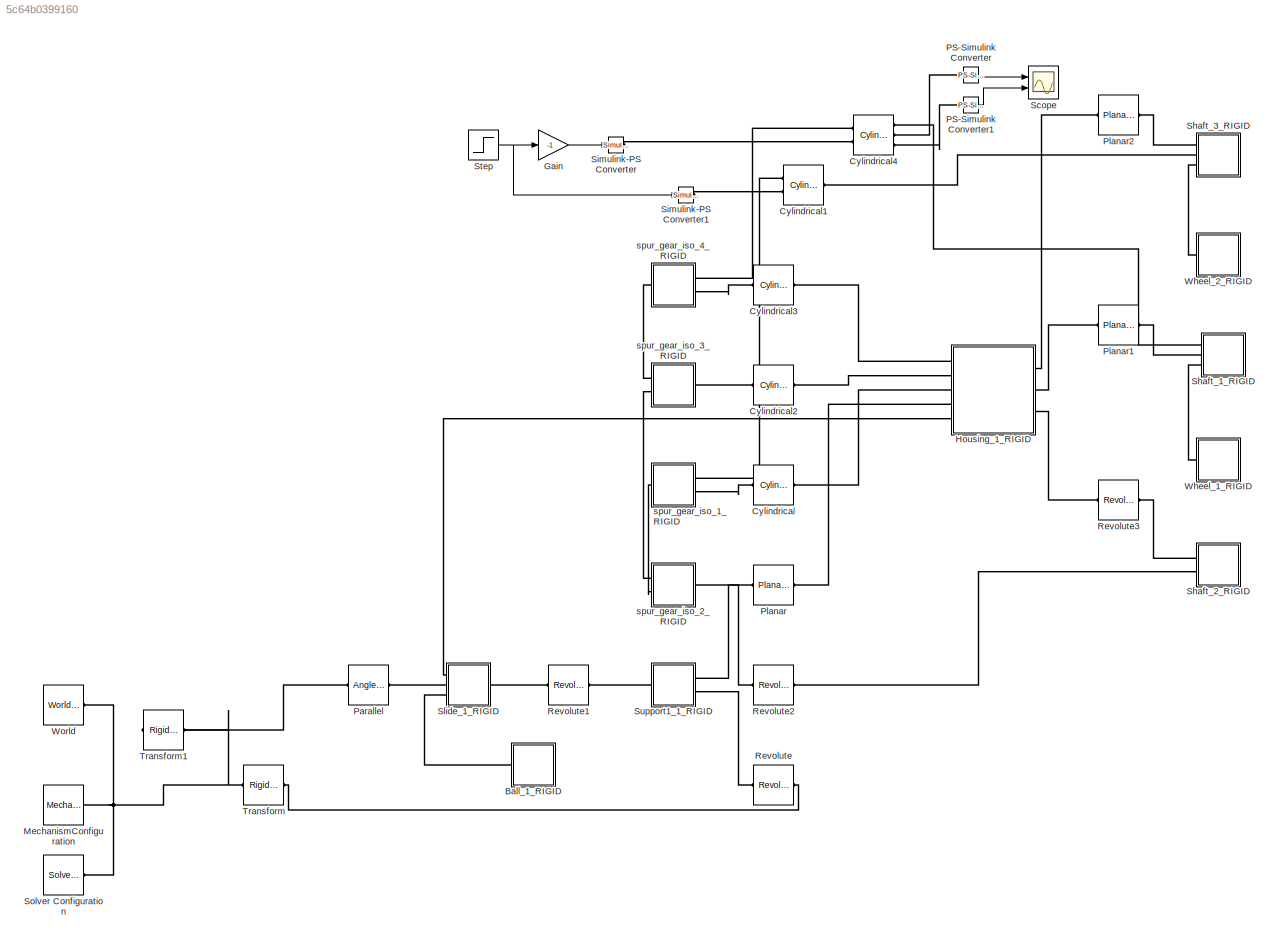
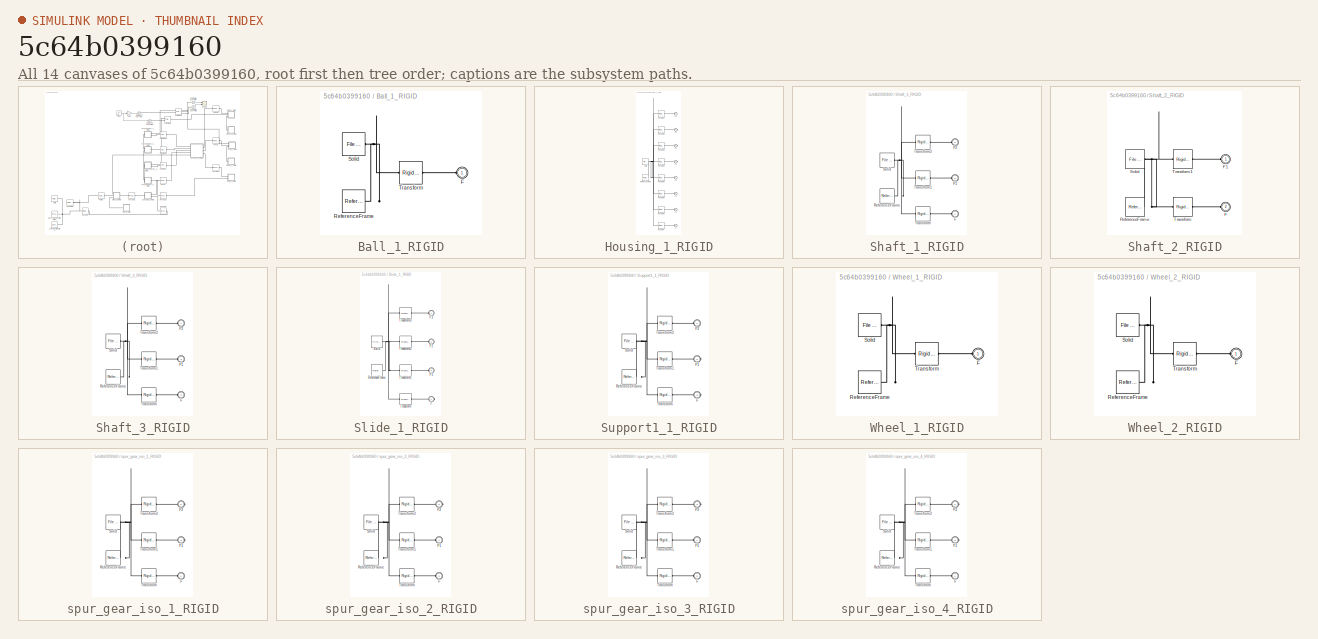
[diagram: thumbnail index - all 14 canvases of the model, root first then tree order]
MODEL slx_5c64b0399160
KIND model
CONFIG AbsTol = auto
CONFIG EnableMultiTasking = off
CONFIG FixedStep = auto
CONFIG MaxStep = auto
CONFIG MinStep = auto
CONFIG RelTol = 1e-3
CONFIG SampleTimeConstraint = Unconstrained
CONFIG SolverName = ode45
CONFIG StartTime = 0.0
CONFIG StopTime = 10
WORKSPACE source: external: MATLAB File  (data not in archive)
BLOCK [SubSystem] Ball_1_RIGID
  Ports = [0, 0, 0, 0, 0, 1]
  RequestExecContextInheritance = off
BLOCK [PMIOPort] Ball_1_RIGID/F
  Side = Left
BLOCK [Reference] Ball_1_RIGID/ReferenceFrame  REF=sm_lib/Frames and
Transforms/Reference
Frame
  Ports = [0, 0, 0, 0, 0, 0, 1]
  SourceBlock = sm_lib/Frames and\nTransforms/Reference\nFrame
  SourceProductBaseCode = MS
  SourceType = Reference\nFrame
BLOCK [Reference] Ball_1_RIGID/Solid  REF=sm_lib/Body Elements/File Solid
  Ports = [0, 0, 0, 0, 0, 0, 1]
  SourceBlock = sm_lib/Body Elements/File Solid
  SourceProductBaseCode = MS
  SourceType = File Solid
BLOCK [Reference] Ball_1_RIGID/Transform  REF=sm_lib/Frames and
Transforms/Rigid
Transform
  Ports = [0, 0, 0, 0, 0, 1, 1]
  SourceBlock = sm_lib/Frames and\nTransforms/Rigid\nTransform
  SourceProductBaseCode = MS
  SourceType = Rigid\nTransform
BLOCK [Reference] Cylindrical  REF=sm_lib/Joints/Cylindrical
Joint
  Ports = [0, 0, 0, 0, 0, 1, 1]
  SourceBlock = sm_lib/Joints/Cylindrical\nJoint
  SourceProductBaseCode = MS
  SourceType = Cylindrical\nJoint
BLOCK [Reference] Cylindrical1  REF=sm_lib/Joints/Cylindrical
Joint
  Ports = [0, 0, 0, 0, 0, 2, 1]
  SourceBlock = sm_lib/Joints/Cylindrical\nJoint
  SourceProductBaseCode = MS
  SourceType = Cylindrical\nJoint
BLOCK [Reference] Cylindrical2  REF=sm_lib/Joints/Cylindrical
Joint
  Ports = [0, 0, 0, 0, 0, 1, 1]
  SourceBlock = sm_lib/Joints/Cylindrical\nJoint
  SourceProductBaseCode = MS
  SourceType = Cylindrical\nJoint
BLOCK [Reference] Cylindrical3  REF=sm_lib/Joints/Cylindrical
Joint
  Ports = [0, 0, 0, 0, 0, 1, 1]
  SourceBlock = sm_lib/Joints/Cylindrical\nJoint
  SourceProductBaseCode = MS
  SourceType = Cylindrical\nJoint
BLOCK [Reference] Cylindrical4  REF=sm_lib/Joints/Cylindrical
Joint
  Ports = [0, 0, 0, 0, 0, 2, 3]
  SourceBlock = sm_lib/Joints/Cylindrical\nJoint
  SourceProductBaseCode = MS
  SourceType = Cylindrical\nJoint
BLOCK [Gain] Gain
  Gain = -1
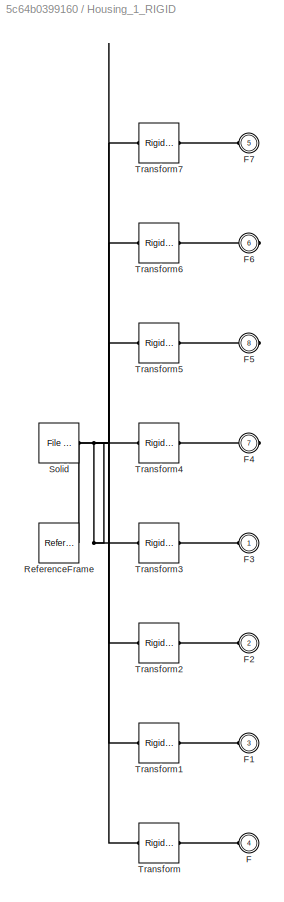
BLOCK [SubSystem] Housing_1_RIGID
  Ports = [0, 0, 0, 0, 0, 5, 3]
  RequestExecContextInheritance = off
BLOCK [PMIOPort] Housing_1_RIGID/F
  Port = 4
  Side = Left
BLOCK [PMIOPort] Housing_1_RIGID/F1
  Port = 3
  Side = Left
BLOCK [PMIOPort] Housing_1_RIGID/F2
  Port = 2
  Side = Left
BLOCK [PMIOPort] Housing_1_RIGID/F3
  Side = Left
BLOCK [PMIOPort] Housing_1_RIGID/F4
  Port = 7
  Side = Right
BLOCK [PMIOPort] Housing_1_RIGID/F5
  Port = 8
  Side = Right
BLOCK [PMIOPort] Housing_1_RIGID/F6
  Port = 6
  Side = Right
BLOCK [PMIOPort] Housing_1_RIGID/F7
  Port = 5
  Side = Left
BLOCK [Reference] Housing_1_RIGID/ReferenceFrame  REF=sm_lib/Frames and
Transforms/Reference
Frame
  Ports = [0, 0, 0, 0, 0, 0, 1]
  SourceBlock = sm_lib/Frames and\nTransforms/Reference\nFrame
  SourceProductBaseCode = MS
  SourceType = Reference\nFrame
BLOCK [Reference] Housing_1_RIGID/Solid  REF=sm_lib/Body Elements/File Solid
  Ports = [0, 0, 0, 0, 0, 0, 1]
  SourceBlock = sm_lib/Body Elements/File Solid
  SourceProductBaseCode = MS
  SourceType = File Solid
BLOCK [Reference] Housing_1_RIGID/Transform  REF=sm_lib/Frames and
Transforms/Rigid
Transform
  Ports = [0, 0, 0, 0, 0, 1, 1]
  SourceBlock = sm_lib/Frames and\nTransforms/Rigid\nTransform
  SourceProductBaseCode = MS
  SourceType = Rigid\nTransform
BLOCK [Reference] Housing_1_RIGID/Transform1  REF=sm_lib/Frames and
Transforms/Rigid
Transform
  Ports = [0, 0, 0, 0, 0, 1, 1]
  SourceBlock = sm_lib/Frames and\nTransforms/Rigid\nTransform
  SourceProductBaseCode = MS
  SourceType = Rigid\nTransform
BLOCK [Reference] Housing_1_RIGID/Transform2  REF=sm_lib/Frames and
Transforms/Rigid
Transform
  Ports = [0, 0, 0, 0, 0, 1, 1]
  SourceBlock = sm_lib/Frames and\nTransforms/Rigid\nTransform
  SourceProductBaseCode = MS
  SourceType = Rigid\nTransform
BLOCK [Reference] Housing_1_RIGID/Transform3  REF=sm_lib/Frames and
Transforms/Rigid
Transform
  Ports = [0, 0, 0, 0, 0, 1, 1]
  SourceBlock = sm_lib/Frames and\nTransforms/Rigid\nTransform
  SourceProductBaseCode = MS
  SourceType = Rigid\nTransform
BLOCK [Reference] Housing_1_RIGID/Transform4  REF=sm_lib/Frames and
Transforms/Rigid
Transform
  Ports = [0, 0, 0, 0, 0, 1, 1]
  SourceBlock = sm_lib/Frames and\nTransforms/Rigid\nTransform
  SourceProductBaseCode = MS
  SourceType = Rigid\nTransform
BLOCK [Reference] Housing_1_RIGID/Transform5  REF=sm_lib/Frames and
Transforms/Rigid
Transform
  Ports = [0, 0, 0, 0, 0, 1, 1]
  SourceBlock = sm_lib/Frames and\nTransforms/Rigid\nTransform
  SourceProductBaseCode = MS
  SourceType = Rigid\nTransform
BLOCK [Reference] Housing_1_RIGID/Transform6  REF=sm_lib/Frames and
Transforms/Rigid
Transform
  Ports = [0, 0, 0, 0, 0, 1, 1]
  SourceBlock = sm_lib/Frames and\nTransforms/Rigid\nTransform
  SourceProductBaseCode = MS
  SourceType = Rigid\nTransform
BLOCK [Reference] Housing_1_RIGID/Transform7  REF=sm_lib/Frames and
Transforms/Rigid
Transform
  Ports = [0, 0, 0, 0, 0, 1, 1]
  SourceBlock = sm_lib/Frames and\nTransforms/Rigid\nTransform
  SourceProductBaseCode = MS
  SourceType = Rigid\nTransform
BLOCK [Reference] MechanismConfiguration  REF=sm_lib/Utilities/Mechanism
Configuration
  Ports = [0, 0, 0, 0, 0, 0, 1]
  SourceBlock = sm_lib/Utilities/Mechanism\nConfiguration
  SourceProductBaseCode = MS
  SourceType = Mechanism\nConfiguration
BLOCK [Reference] PS-Simulink Converter  REF=nesl_utility/PS-Simulink
Converter
  Ports = [0, 1, 0, 0, 0, 1]
  SourceBlock = nesl_utility/PS-Simulink\nConverter
  SourceProductBaseCode = PW,SS
  SourceType = PS-Simulink\nConverter
BLOCK [Reference] PS-Simulink Converter1  REF=nesl_utility/PS-Simulink
Converter
  Ports = [0, 1, 0, 0, 0, 1]
  SourceBlock = nesl_utility/PS-Simulink\nConverter
  SourceProductBaseCode = PW,SS
  SourceType = PS-Simulink\nConverter
BLOCK [Reference] Parallel  REF=sm_lib/Constraints/Angle
Constraint
  Ports = [0, 0, 0, 0, 0, 1, 1]
  SourceBlock = sm_lib/Constraints/Angle\nConstraint
  SourceProductBaseCode = MS
  SourceType = Angle\nConstraint
BLOCK [Reference] Planar  REF=sm_lib/Joints/Planar Joint
  Ports = [0, 0, 0, 0, 0, 1, 1]
  SourceBlock = sm_lib/Joints/Planar Joint
  SourceProductBaseCode = MS
  SourceType = Planar Joint
BLOCK [Reference] Planar1  REF=sm_lib/Joints/Planar Joint
  Ports = [0, 0, 0, 0, 0, 1, 1]
  SourceBlock = sm_lib/Joints/Planar Joint
  SourceProductBaseCode = MS
  SourceType = Planar Joint
BLOCK [Reference] Planar2  REF=sm_lib/Joints/Planar Joint
  Ports = [0, 0, 0, 0, 0, 1, 1]
  SourceBlock = sm_lib/Joints/Planar Joint
  SourceProductBaseCode = MS
  SourceType = Planar Joint
BLOCK [Reference] Revolute  REF=sm_lib/Joints/Revolute Joint
  Ports = [0, 0, 0, 0, 0, 1, 1]
  SourceBlock = sm_lib/Joints/Revolute Joint
  SourceProductBaseCode = MS
  SourceType = Revolute Joint
BLOCK [Reference] Revolute1  REF=sm_lib/Joints/Revolute Joint
  Ports = [0, 0, 0, 0, 0, 1, 1]
  SourceBlock = sm_lib/Joints/Revolute Joint
  SourceProductBaseCode = MS
  SourceType = Revolute Joint
BLOCK [Reference] Revolute2  REF=sm_lib/Joints/Revolute Joint
  Ports = [0, 0, 0, 0, 0, 1, 1]
  SourceBlock = sm_lib/Joints/Revolute Joint
  SourceProductBaseCode = MS
  SourceType = Revolute Joint
BLOCK [Reference] Revolute3  REF=sm_lib/Joints/Revolute Joint
  Ports = [0, 0, 0, 0, 0, 1, 1]
  SourceBlock = sm_lib/Joints/Revolute Joint
  SourceProductBaseCode = MS
  SourceType = Revolute Joint
BLOCK [Scope] Scope
  Floating = off
  NumInputPorts = 2
  Ports = [2]
  ScopeSpecificationString = Simulink.scopes.TimeScopeBlockCfg('CurrentConfiguration', extmgr.ConfigurationSet(extmgr.Configuration('Core','General UI',true),extmgr.Configuration('Core','Source UI',true),extmgr.Configuration('Sources','WiredSimulink',true),extmgr.Configuration('Visuals','Time Domain',true,'SerializedDisplays',{struct('MinYLimReal','-0.21815','MaxYLimReal','1.96334','YLabelReal','','MinYLimMag','0.00000','MaxY...<+2366ch>
BLOCK [SubSystem] Shaft_1_RIGID
  Ports = [0, 0, 0, 0, 0, 3]
  RequestExecContextInheritance = off
BLOCK [PMIOPort] Shaft_1_RIGID/F
  Side = Left
BLOCK [PMIOPort] Shaft_1_RIGID/F1
  Port = 3
  Side = Left
BLOCK [PMIOPort] Shaft_1_RIGID/F2
  Port = 2
  Side = Left
BLOCK [Reference] Shaft_1_RIGID/ReferenceFrame  REF=sm_lib/Frames and
Transforms/Reference
Frame
  Ports = [0, 0, 0, 0, 0, 0, 1]
  SourceBlock = sm_lib/Frames and\nTransforms/Reference\nFrame
  SourceProductBaseCode = MS
  SourceType = Reference\nFrame
BLOCK [Reference] Shaft_1_RIGID/Solid  REF=sm_lib/Body Elements/File Solid
  Ports = [0, 0, 0, 0, 0, 0, 1]
  SourceBlock = sm_lib/Body Elements/File Solid
  SourceProductBaseCode = MS
  SourceType = File Solid
BLOCK [Reference] Shaft_1_RIGID/Transform  REF=sm_lib/Frames and
Transforms/Rigid
Transform
  Ports = [0, 0, 0, 0, 0, 1, 1]
  SourceBlock = sm_lib/Frames and\nTransforms/Rigid\nTransform
  SourceProductBaseCode = MS
  SourceType = Rigid\nTransform
BLOCK [Reference] Shaft_1_RIGID/Transform1  REF=sm_lib/Frames and
Transforms/Rigid
Transform
  Ports = [0, 0, 0, 0, 0, 1, 1]
  SourceBlock = sm_lib/Frames and\nTransforms/Rigid\nTransform
  SourceProductBaseCode = MS
  SourceType = Rigid\nTransform
BLOCK [Reference] Shaft_1_RIGID/Transform2  REF=sm_lib/Frames and
Transforms/Rigid
Transform
  Ports = [0, 0, 0, 0, 0, 1, 1]
  SourceBlock = sm_lib/Frames and\nTransforms/Rigid\nTransform
  SourceProductBaseCode = MS
  SourceType = Rigid\nTransform
BLOCK [SubSystem] Shaft_2_RIGID
  Ports = [0, 0, 0, 0, 0, 2]
  RequestExecContextInheritance = off
BLOCK [PMIOPort] Shaft_2_RIGID/F
  Port = 2
  Side = Left
BLOCK [PMIOPort] Shaft_2_RIGID/F1
  Side = Left
BLOCK [Reference] Shaft_2_RIGID/ReferenceFrame  REF=sm_lib/Frames and
Transforms/Reference
Frame
  Ports = [0, 0, 0, 0, 0, 0, 1]
  SourceBlock = sm_lib/Frames and\nTransforms/Reference\nFrame
  SourceProductBaseCode = MS
  SourceType = Reference\nFrame
BLOCK [Reference] Shaft_2_RIGID/Solid  REF=sm_lib/Body Elements/File Solid
  Ports = [0, 0, 0, 0, 0, 0, 1]
  SourceBlock = sm_lib/Body Elements/File Solid
  SourceProductBaseCode = MS
  SourceType = File Solid
BLOCK [Reference] Shaft_2_RIGID/Transform  REF=sm_lib/Frames and
Transforms/Rigid
Transform
  Ports = [0, 0, 0, 0, 0, 1, 1]
  SourceBlock = sm_lib/Frames and\nTransforms/Rigid\nTransform
  SourceProductBaseCode = MS
  SourceType = Rigid\nTransform
BLOCK [Reference] Shaft_2_RIGID/Transform1  REF=sm_lib/Frames and
Transforms/Rigid
Transform
  Ports = [0, 0, 0, 0, 0, 1, 1]
  SourceBlock = sm_lib/Frames and\nTransforms/Rigid\nTransform
  SourceProductBaseCode = MS
  SourceType = Rigid\nTransform
BLOCK [SubSystem] Shaft_3_RIGID
  Ports = [0, 0, 0, 0, 0, 3]
  RequestExecContextInheritance = off
BLOCK [PMIOPort] Shaft_3_RIGID/F
  Port = 2
  Side = Left
BLOCK [PMIOPort] Shaft_3_RIGID/F1
  Port = 3
  Side = Left
BLOCK [PMIOPort] Shaft_3_RIGID/F2
  Side = Left
BLOCK [Reference] Shaft_3_RIGID/ReferenceFrame  REF=sm_lib/Frames and
Transforms/Reference
Frame
  Ports = [0, 0, 0, 0, 0, 0, 1]
  SourceBlock = sm_lib/Frames and\nTransforms/Reference\nFrame
  SourceProductBaseCode = MS
  SourceType = Reference\nFrame
BLOCK [Reference] Shaft_3_RIGID/Solid  REF=sm_lib/Body Elements/File Solid
  Ports = [0, 0, 0, 0, 0, 0, 1]
  SourceBlock = sm_lib/Body Elements/File Solid
  SourceProductBaseCode = MS
  SourceType = File Solid
BLOCK [Reference] Shaft_3_RIGID/Transform  REF=sm_lib/Frames and
Transforms/Rigid
Transform
  Ports = [0, 0, 0, 0, 0, 1, 1]
  SourceBlock = sm_lib/Frames and\nTransforms/Rigid\nTransform
  SourceProductBaseCode = MS
  SourceType = Rigid\nTransform
BLOCK [Reference] Shaft_3_RIGID/Transform1  REF=sm_lib/Frames and
Transforms/Rigid
Transform
  Ports = [0, 0, 0, 0, 0, 1, 1]
  SourceBlock = sm_lib/Frames and\nTransforms/Rigid\nTransform
  SourceProductBaseCode = MS
  SourceType = Rigid\nTransform
BLOCK [Reference] Shaft_3_RIGID/Transform2  REF=sm_lib/Frames and
Transforms/Rigid
Transform
  Ports = [0, 0, 0, 0, 0, 1, 1]
  SourceBlock = sm_lib/Frames and\nTransforms/Rigid\nTransform
  SourceProductBaseCode = MS
  SourceType = Rigid\nTransform
BLOCK [Reference] Simulink-PS Converter  REF=nesl_utility/Simulink-PS
Converter
  Ports = [1, 0, 0, 0, 0, 0, 1]
  SourceBlock = nesl_utility/Simulink-PS\nConverter
  SourceProductBaseCode = PW,SS
  SourceType = Simulink-PS\nConverter
BLOCK [Reference] Simulink-PS Converter1  REF=nesl_utility/Simulink-PS
Converter
  Ports = [1, 0, 0, 0, 0, 0, 1]
  SourceBlock = nesl_utility/Simulink-PS\nConverter
  SourceProductBaseCode = PW,SS
  SourceType = Simulink-PS\nConverter
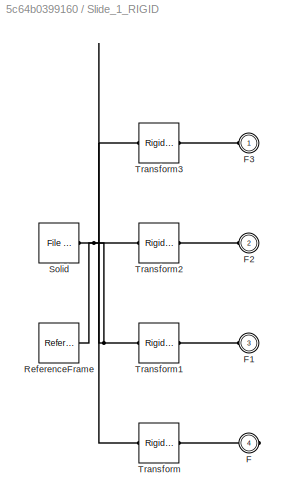
BLOCK [SubSystem] Slide_1_RIGID
  Ports = [0, 0, 0, 0, 0, 3, 1]
  RequestExecContextInheritance = off
BLOCK [PMIOPort] Slide_1_RIGID/F
  Port = 4
  Side = Right
BLOCK [PMIOPort] Slide_1_RIGID/F1
  Port = 3
  Side = Left
BLOCK [PMIOPort] Slide_1_RIGID/F2
  Port = 2
  Side = Left
BLOCK [PMIOPort] Slide_1_RIGID/F3
  Side = Left
BLOCK [Reference] Slide_1_RIGID/ReferenceFrame  REF=sm_lib/Frames and
Transforms/Reference
Frame
  Ports = [0, 0, 0, 0, 0, 0, 1]
  SourceBlock = sm_lib/Frames and\nTransforms/Reference\nFrame
  SourceProductBaseCode = MS
  SourceType = Reference\nFrame
BLOCK [Reference] Slide_1_RIGID/Solid  REF=sm_lib/Body Elements/File Solid
  Ports = [0, 0, 0, 0, 0, 0, 1]
  SourceBlock = sm_lib/Body Elements/File Solid
  SourceProductBaseCode = MS
  SourceType = File Solid
BLOCK [Reference] Slide_1_RIGID/Transform  REF=sm_lib/Frames and
Transforms/Rigid
Transform
  Ports = [0, 0, 0, 0, 0, 1, 1]
  SourceBlock = sm_lib/Frames and\nTransforms/Rigid\nTransform
  SourceProductBaseCode = MS
  SourceType = Rigid\nTransform
BLOCK [Reference] Slide_1_RIGID/Transform1  REF=sm_lib/Frames and
Transforms/Rigid
Transform
  Ports = [0, 0, 0, 0, 0, 1, 1]
  SourceBlock = sm_lib/Frames and\nTransforms/Rigid\nTransform
  SourceProductBaseCode = MS
  SourceType = Rigid\nTransform
BLOCK [Reference] Slide_1_RIGID/Transform2  REF=sm_lib/Frames and
Transforms/Rigid
Transform
  Ports = [0, 0, 0, 0, 0, 1, 1]
  SourceBlock = sm_lib/Frames and\nTransforms/Rigid\nTransform
  SourceProductBaseCode = MS
  SourceType = Rigid\nTransform
BLOCK [Reference] Slide_1_RIGID/Transform3  REF=sm_lib/Frames and
Transforms/Rigid
Transform
  Ports = [0, 0, 0, 0, 0, 1, 1]
  SourceBlock = sm_lib/Frames and\nTransforms/Rigid\nTransform
  SourceProductBaseCode = MS
  SourceType = Rigid\nTransform
BLOCK [Reference] Solver Configuration  REF=nesl_utility/Solver
Configuration
  Ports = [0, 0, 0, 0, 0, 0, 1]
  SourceBlock = nesl_utility/Solver\nConfiguration
  SourceProductBaseCode = PW,SS
  SourceType = Solver\nConfiguration
BLOCK [Step] Step
  After = 0
  Before = 0.1
  SampleTime = 0
  Time = 5
BLOCK [SubSystem] Support1_1_RIGID
  Ports = [0, 0, 0, 0, 0, 1, 2]
  RequestExecContextInheritance = off
BLOCK [PMIOPort] Support1_1_RIGID/F
  Port = 3
  Side = Right
BLOCK [PMIOPort] Support1_1_RIGID/F1
  Port = 2
  Side = Right
BLOCK [PMIOPort] Support1_1_RIGID/F2
  Side = Left
BLOCK [Reference] Support1_1_RIGID/ReferenceFrame  REF=sm_lib/Frames and
Transforms/Reference
Frame
  Ports = [0, 0, 0, 0, 0, 0, 1]
  SourceBlock = sm_lib/Frames and\nTransforms/Reference\nFrame
  SourceProductBaseCode = MS
  SourceType = Reference\nFrame
BLOCK [Reference] Support1_1_RIGID/Solid  REF=sm_lib/Body Elements/File Solid
  Ports = [0, 0, 0, 0, 0, 0, 1]
  SourceBlock = sm_lib/Body Elements/File Solid
  SourceProductBaseCode = MS
  SourceType = File Solid
BLOCK [Reference] Support1_1_RIGID/Transform  REF=sm_lib/Frames and
Transforms/Rigid
Transform
  Ports = [0, 0, 0, 0, 0, 1, 1]
  SourceBlock = sm_lib/Frames and\nTransforms/Rigid\nTransform
  SourceProductBaseCode = MS
  SourceType = Rigid\nTransform
BLOCK [Reference] Support1_1_RIGID/Transform1  REF=sm_lib/Frames and
Transforms/Rigid
Transform
  Ports = [0, 0, 0, 0, 0, 1, 1]
  SourceBlock = sm_lib/Frames and\nTransforms/Rigid\nTransform
  SourceProductBaseCode = MS
  SourceType = Rigid\nTransform
BLOCK [Reference] Support1_1_RIGID/Transform2  REF=sm_lib/Frames and
Transforms/Rigid
Transform
  Ports = [0, 0, 0, 0, 0, 1, 1]
  SourceBlock = sm_lib/Frames and\nTransforms/Rigid\nTransform
  SourceProductBaseCode = MS
  SourceType = Rigid\nTransform
BLOCK [Reference] Transform  REF=sm_lib/Frames and
Transforms/Rigid
Transform
  Ports = [0, 0, 0, 0, 0, 1, 1]
  SourceBlock = sm_lib/Frames and\nTransforms/Rigid\nTransform
  SourceProductBaseCode = MS
  SourceType = Rigid\nTransform
BLOCK [Reference] Transform1  REF=sm_lib/Frames and
Transforms/Rigid
Transform
  Ports = [0, 0, 0, 0, 0, 1, 1]
  SourceBlock = sm_lib/Frames and\nTransforms/Rigid\nTransform
  SourceProductBaseCode = MS
  SourceType = Rigid\nTransform
BLOCK [SubSystem] Wheel_1_RIGID
  Ports = [0, 0, 0, 0, 0, 1]
  RequestExecContextInheritance = off
BLOCK [PMIOPort] Wheel_1_RIGID/F
  Side = Left
BLOCK [Reference] Wheel_1_RIGID/ReferenceFrame  REF=sm_lib/Frames and
Transforms/Reference
Frame
  Ports = [0, 0, 0, 0, 0, 0, 1]
  SourceBlock = sm_lib/Frames and\nTransforms/Reference\nFrame
  SourceProductBaseCode = MS
  SourceType = Reference\nFrame
BLOCK [Reference] Wheel_1_RIGID/Solid  REF=sm_lib/Body Elements/File Solid
  Ports = [0, 0, 0, 0, 0, 0, 1]
  SourceBlock = sm_lib/Body Elements/File Solid
  SourceProductBaseCode = MS
  SourceType = File Solid
BLOCK [Reference] Wheel_1_RIGID/Transform  REF=sm_lib/Frames and
Transforms/Rigid
Transform
  Ports = [0, 0, 0, 0, 0, 1, 1]
  SourceBlock = sm_lib/Frames and\nTransforms/Rigid\nTransform
  SourceProductBaseCode = MS
  SourceType = Rigid\nTransform
BLOCK [SubSystem] Wheel_2_RIGID
  Ports = [0, 0, 0, 0, 0, 1]
  RequestExecContextInheritance = off
BLOCK [PMIOPort] Wheel_2_RIGID/F
  Side = Left
BLOCK [Reference] Wheel_2_RIGID/ReferenceFrame  REF=sm_lib/Frames and
Transforms/Reference
Frame
  Ports = [0, 0, 0, 0, 0, 0, 1]
  SourceBlock = sm_lib/Frames and\nTransforms/Reference\nFrame
  SourceProductBaseCode = MS
  SourceType = Reference\nFrame
BLOCK [Reference] Wheel_2_RIGID/Solid  REF=sm_lib/Body Elements/File Solid
  Ports = [0, 0, 0, 0, 0, 0, 1]
  SourceBlock = sm_lib/Body Elements/File Solid
  SourceProductBaseCode = MS
  SourceType = File Solid
BLOCK [Reference] Wheel_2_RIGID/Transform  REF=sm_lib/Frames and
Transforms/Rigid
Transform
  Ports = [0, 0, 0, 0, 0, 1, 1]
  SourceBlock = sm_lib/Frames and\nTransforms/Rigid\nTransform
  SourceProductBaseCode = MS
  SourceType = Rigid\nTransform
BLOCK [Reference] World  REF=sm_lib/Frames and
Transforms/World Frame
  Ports = [0, 0, 0, 0, 0, 0, 1]
  SourceBlock = sm_lib/Frames and\nTransforms/World Frame
  SourceProductBaseCode = MS
  SourceType = World Frame
BLOCK [SubSystem] spur_gear_iso_1_RIGID
  Ports = [0, 0, 0, 0, 0, 1, 2]
  RequestExecContextInheritance = off
BLOCK [PMIOPort] spur_gear_iso_1_RIGID/F
  Side = Left
BLOCK [PMIOPort] spur_gear_iso_1_RIGID/F1
  Port = 3
  Side = Right
BLOCK [PMIOPort] spur_gear_iso_1_RIGID/F2
  Port = 2
  Side = Right
BLOCK [Reference] spur_gear_iso_1_RIGID/ReferenceFrame  REF=sm_lib/Frames and
Transforms/Reference
Frame
  Ports = [0, 0, 0, 0, 0, 0, 1]
  SourceBlock = sm_lib/Frames and\nTransforms/Reference\nFrame
  SourceProductBaseCode = MS
  SourceType = Reference\nFrame
BLOCK [Reference] spur_gear_iso_1_RIGID/Solid  REF=sm_lib/Body Elements/File Solid
  Ports = [0, 0, 0, 0, 0, 0, 1]
  SourceBlock = sm_lib/Body Elements/File Solid
  SourceProductBaseCode = MS
  SourceType = File Solid
BLOCK [Reference] spur_gear_iso_1_RIGID/Transform  REF=sm_lib/Frames and
Transforms/Rigid
Transform
  Ports = [0, 0, 0, 0, 0, 1, 1]
  SourceBlock = sm_lib/Frames and\nTransforms/Rigid\nTransform
  SourceProductBaseCode = MS
  SourceType = Rigid\nTransform
BLOCK [Reference] spur_gear_iso_1_RIGID/Transform1  REF=sm_lib/Frames and
Transforms/Rigid
Transform
  Ports = [0, 0, 0, 0, 0, 1, 1]
  SourceBlock = sm_lib/Frames and\nTransforms/Rigid\nTransform
  SourceProductBaseCode = MS
  SourceType = Rigid\nTransform
BLOCK [Reference] spur_gear_iso_1_RIGID/Transform2  REF=sm_lib/Frames and
Transforms/Rigid
Transform
  Ports = [0, 0, 0, 0, 0, 1, 1]
  SourceBlock = sm_lib/Frames and\nTransforms/Rigid\nTransform
  SourceProductBaseCode = MS
  SourceType = Rigid\nTransform
BLOCK [SubSystem] spur_gear_iso_2_RIGID
  Ports = [0, 0, 0, 0, 0, 2, 1]
  RequestExecContextInheritance = off
BLOCK [PMIOPort] spur_gear_iso_2_RIGID/F
  Port = 2
  Side = Left
BLOCK [PMIOPort] spur_gear_iso_2_RIGID/F1
  Side = Left
BLOCK [PMIOPort] spur_gear_iso_2_RIGID/F2
  Port = 3
  Side = Right
BLOCK [Reference] spur_gear_iso_2_RIGID/ReferenceFrame  REF=sm_lib/Frames and
Transforms/Reference
Frame
  Ports = [0, 0, 0, 0, 0, 0, 1]
  SourceBlock = sm_lib/Frames and\nTransforms/Reference\nFrame
  SourceProductBaseCode = MS
  SourceType = Reference\nFrame
BLOCK [Reference] spur_gear_iso_2_RIGID/Solid  REF=sm_lib/Body Elements/File Solid
  Ports = [0, 0, 0, 0, 0, 0, 1]
  SourceBlock = sm_lib/Body Elements/File Solid
  SourceProductBaseCode = MS
  SourceType = File Solid
BLOCK [Reference] spur_gear_iso_2_RIGID/Transform  REF=sm_lib/Frames and
Transforms/Rigid
Transform
  Ports = [0, 0, 0, 0, 0, 1, 1]
  SourceBlock = sm_lib/Frames and\nTransforms/Rigid\nTransform
  SourceProductBaseCode = MS
  SourceType = Rigid\nTransform
BLOCK [Reference] spur_gear_iso_2_RIGID/Transform1  REF=sm_lib/Frames and
Transforms/Rigid
Transform
  Ports = [0, 0, 0, 0, 0, 1, 1]
  SourceBlock = sm_lib/Frames and\nTransforms/Rigid\nTransform
  SourceProductBaseCode = MS
  SourceType = Rigid\nTransform
BLOCK [Reference] spur_gear_iso_2_RIGID/Transform2  REF=sm_lib/Frames and
Transforms/Rigid
Transform
  Ports = [0, 0, 0, 0, 0, 1, 1]
  SourceBlock = sm_lib/Frames and\nTransforms/Rigid\nTransform
  SourceProductBaseCode = MS
  SourceType = Rigid\nTransform
BLOCK [SubSystem] spur_gear_iso_3_RIGID
  Ports = [0, 0, 0, 0, 0, 2, 1]
  RequestExecContextInheritance = off
BLOCK [PMIOPort] spur_gear_iso_3_RIGID/F
  Port = 2
  Side = Left
BLOCK [PMIOPort] spur_gear_iso_3_RIGID/F1
  Side = Left
BLOCK [PMIOPort] spur_gear_iso_3_RIGID/F2
  Port = 3
  Side = Right
BLOCK [Reference] spur_gear_iso_3_RIGID/ReferenceFrame  REF=sm_lib/Frames and
Transforms/Reference
Frame
  Ports = [0, 0, 0, 0, 0, 0, 1]
  SourceBlock = sm_lib/Frames and\nTransforms/Reference\nFrame
  SourceProductBaseCode = MS
  SourceType = Reference\nFrame
BLOCK [Reference] spur_gear_iso_3_RIGID/Solid  REF=sm_lib/Body Elements/File Solid
  Ports = [0, 0, 0, 0, 0, 0, 1]
  SourceBlock = sm_lib/Body Elements/File Solid
  SourceProductBaseCode = MS
  SourceType = File Solid
BLOCK [Reference] spur_gear_iso_3_RIGID/Transform  REF=sm_lib/Frames and
Transforms/Rigid
Transform
  Ports = [0, 0, 0, 0, 0, 1, 1]
  SourceBlock = sm_lib/Frames and\nTransforms/Rigid\nTransform
  SourceProductBaseCode = MS
  SourceType = Rigid\nTransform
BLOCK [Reference] spur_gear_iso_3_RIGID/Transform1  REF=sm_lib/Frames and
Transforms/Rigid
Transform
  Ports = [0, 0, 0, 0, 0, 1, 1]
  SourceBlock = sm_lib/Frames and\nTransforms/Rigid\nTransform
  SourceProductBaseCode = MS
  SourceType = Rigid\nTransform
BLOCK [Reference] spur_gear_iso_3_RIGID/Transform2  REF=sm_lib/Frames and
Transforms/Rigid
Transform
  Ports = [0, 0, 0, 0, 0, 1, 1]
  SourceBlock = sm_lib/Frames and\nTransforms/Rigid\nTransform
  SourceProductBaseCode = MS
  SourceType = Rigid\nTransform
BLOCK [SubSystem] spur_gear_iso_4_RIGID
  Ports = [0, 0, 0, 0, 0, 1, 2]
  RequestExecContextInheritance = off
BLOCK [PMIOPort] spur_gear_iso_4_RIGID/F
  Side = Left
BLOCK [PMIOPort] spur_gear_iso_4_RIGID/F1
  Port = 3
  Side = Right
BLOCK [PMIOPort] spur_gear_iso_4_RIGID/F2
  Port = 2
  Side = Right
BLOCK [Reference] spur_gear_iso_4_RIGID/ReferenceFrame  REF=sm_lib/Frames and
Transforms/Reference
Frame
  Ports = [0, 0, 0, 0, 0, 0, 1]
  SourceBlock = sm_lib/Frames and\nTransforms/Reference\nFrame
  SourceProductBaseCode = MS
  SourceType = Reference\nFrame
BLOCK [Reference] spur_gear_iso_4_RIGID/Solid  REF=sm_lib/Body Elements/File Solid
  Ports = [0, 0, 0, 0, 0, 0, 1]
  SourceBlock = sm_lib/Body Elements/File Solid
  SourceProductBaseCode = MS
  SourceType = File Solid
BLOCK [Reference] spur_gear_iso_4_RIGID/Transform  REF=sm_lib/Frames and
Transforms/Rigid
Transform
  Ports = [0, 0, 0, 0, 0, 1, 1]
  SourceBlock = sm_lib/Frames and\nTransforms/Rigid\nTransform
  SourceProductBaseCode = MS
  SourceType = Rigid\nTransform
BLOCK [Reference] spur_gear_iso_4_RIGID/Transform1  REF=sm_lib/Frames and
Transforms/Rigid
Transform
  Ports = [0, 0, 0, 0, 0, 1, 1]
  SourceBlock = sm_lib/Frames and\nTransforms/Rigid\nTransform
  SourceProductBaseCode = MS
  SourceType = Rigid\nTransform
BLOCK [Reference] spur_gear_iso_4_RIGID/Transform2  REF=sm_lib/Frames and
Transforms/Rigid
Transform
  Ports = [0, 0, 0, 0, 0, 1, 1]
  SourceBlock = sm_lib/Frames and\nTransforms/Rigid\nTransform
  SourceProductBaseCode = MS
  SourceType = Rigid\nTransform
LINE Gain:1 -> Simulink-PS Converter:1
LINE PS-Simulink Converter1:1 -> Scope:2
LINE PS-Simulink Converter:1 -> Scope:1
NET Step:1 -> Gain:1, Simulink-PS Converter1:1
PLINE Ball_1_RIGID/F:RConn1 -- Ball_1_RIGID/Transform:RConn1
PNET net1: Ball_1_RIGID/ReferenceFrame:RConn1 -- Ball_1_RIGID/Solid:RConn1 -- Ball_1_RIGID/Transform:LConn1
PLINE Ball_1_RIGID:LConn1 -- Slide_1_RIGID:LConn3
PLINE Cylindrical1:LConn1 -- spur_gear_iso_1_RIGID:RConn1
PLINE Cylindrical1:LConn2 -- Simulink-PS Converter1:RConn1
PLINE Cylindrical1:RConn1 -- Shaft_3_RIGID:LConn2
PLINE Cylindrical2:LConn1 -- spur_gear_iso_3_RIGID:RConn1
PLINE Cylindrical2:RConn1 -- Housing_1_RIGID:LConn2
PLINE Cylindrical3:LConn1 -- spur_gear_iso_4_RIGID:RConn2
PLINE Cylindrical3:RConn1 -- Housing_1_RIGID:LConn1
PLINE Cylindrical4:LConn1 -- spur_gear_iso_4_RIGID:RConn1
PLINE Cylindrical4:LConn2 -- Simulink-PS Converter:RConn1
PLINE Cylindrical4:RConn1 -- Shaft_1_RIGID:LConn1
PLINE Cylindrical4:RConn2 -- PS-Simulink Converter:LConn1
PLINE Cylindrical4:RConn3 -- PS-Simulink Converter1:LConn1
PLINE Cylindrical:LConn1 -- spur_gear_iso_1_RIGID:RConn2
PLINE Cylindrical:RConn1 -- Housing_1_RIGID:LConn3
PLINE Housing_1_RIGID/F1:RConn1 -- Housing_1_RIGID/Transform1:RConn1
PLINE Housing_1_RIGID/F2:RConn1 -- Housing_1_RIGID/Transform2:RConn1
PLINE Housing_1_RIGID/F3:RConn1 -- Housing_1_RIGID/Transform3:RConn1
PLINE Housing_1_RIGID/F4:RConn1 -- Housing_1_RIGID/Transform4:RConn1
PLINE Housing_1_RIGID/F5:RConn1 -- Housing_1_RIGID/Transform5:RConn1
PLINE Housing_1_RIGID/F6:RConn1 -- Housing_1_RIGID/Transform6:RConn1
PLINE Housing_1_RIGID/F7:RConn1 -- Housing_1_RIGID/Transform7:RConn1
PLINE Housing_1_RIGID/F:RConn1 -- Housing_1_RIGID/Transform:RConn1
PNET net2: Housing_1_RIGID/ReferenceFrame:RConn1 -- Housing_1_RIGID/Solid:RConn1 -- Housing_1_RIGID/Transform1:LConn1 -- Housing_1_RIGID/Transform2:LConn1 -- Housing_1_RIGID/Transform3:LConn1 -- Housing_1_RIGID/Transform4:LConn1 -- Housing_1_RIGID/Transform5:LConn1 -- Housing_1_RIGID/Transform6:LConn1 -- Housing_1_RIGID/Transform7:LConn1 -- Housing_1_RIGID/Transform:LConn1
PLINE Housing_1_RIGID:LConn4 -- Planar:RConn1
PLINE Housing_1_RIGID:LConn5 -- Slide_1_RIGID:LConn1
PLINE Housing_1_RIGID:RConn1 -- Planar2:LConn1
PLINE Housing_1_RIGID:RConn2 -- Planar1:LConn1
PLINE Housing_1_RIGID:RConn3 -- Revolute3:LConn1
PNET net3: MechanismConfiguration:RConn1 -- Solver Configuration:RConn1 -- Transform1:LConn1 -- Transform:LConn1 -- World:RConn1
PLINE Parallel:LConn1 -- Transform1:RConn1
PLINE Parallel:RConn1 -- Slide_1_RIGID:LConn2
PLINE Planar1:RConn1 -- Shaft_1_RIGID:LConn2
PLINE Planar2:RConn1 -- Shaft_3_RIGID:LConn1
PLINE Planar:LConn1 -- Support1_1_RIGID:RConn1
PLINE Revolute1:LConn1 -- Slide_1_RIGID:RConn1
PLINE Revolute1:RConn1 -- Support1_1_RIGID:LConn1
PLINE Revolute2:LConn1 -- spur_gear_iso_2_RIGID:RConn1
PLINE Revolute2:RConn1 -- Shaft_2_RIGID:LConn2
PLINE Revolute3:RConn1 -- Shaft_2_RIGID:LConn1
PLINE Revolute:LConn1 -- Support1_1_RIGID:RConn2
PLINE Revolute:RConn1 -- Transform:RConn1
PLINE Shaft_1_RIGID/F1:RConn1 -- Shaft_1_RIGID/Transform1:RConn1
PLINE Shaft_1_RIGID/F2:RConn1 -- Shaft_1_RIGID/Transform2:RConn1
PLINE Shaft_1_RIGID/F:RConn1 -- Shaft_1_RIGID/Transform:RConn1
PNET net4: Shaft_1_RIGID/ReferenceFrame:RConn1 -- Shaft_1_RIGID/Solid:RConn1 -- Shaft_1_RIGID/Transform1:LConn1 -- Shaft_1_RIGID/Transform2:LConn1 -- Shaft_1_RIGID/Transform:LConn1
PLINE Shaft_1_RIGID:LConn3 -- Wheel_1_RIGID:LConn1
PLINE Shaft_2_RIGID/F1:RConn1 -- Shaft_2_RIGID/Transform1:RConn1
PLINE Shaft_2_RIGID/F:RConn1 -- Shaft_2_RIGID/Transform:RConn1
PNET net5: Shaft_2_RIGID/ReferenceFrame:RConn1 -- Shaft_2_RIGID/Solid:RConn1 -- Shaft_2_RIGID/Transform1:LConn1 -- Shaft_2_RIGID/Transform:LConn1
PLINE Shaft_3_RIGID/F1:RConn1 -- Shaft_3_RIGID/Transform1:RConn1
PLINE Shaft_3_RIGID/F2:RConn1 -- Shaft_3_RIGID/Transform2:RConn1
PLINE Shaft_3_RIGID/F:RConn1 -- Shaft_3_RIGID/Transform:RConn1
PNET net6: Shaft_3_RIGID/ReferenceFrame:RConn1 -- Shaft_3_RIGID/Solid:RConn1 -- Shaft_3_RIGID/Transform1:LConn1 -- Shaft_3_RIGID/Transform2:LConn1 -- Shaft_3_RIGID/Transform:LConn1
PLINE Shaft_3_RIGID:LConn3 -- Wheel_2_RIGID:LConn1
PLINE Slide_1_RIGID/F1:RConn1 -- Slide_1_RIGID/Transform1:RConn1
PLINE Slide_1_RIGID/F2:RConn1 -- Slide_1_RIGID/Transform2:RConn1
PLINE Slide_1_RIGID/F3:RConn1 -- Slide_1_RIGID/Transform3:RConn1
PLINE Slide_1_RIGID/F:RConn1 -- Slide_1_RIGID/Transform:RConn1
PNET net7: Slide_1_RIGID/ReferenceFrame:RConn1 -- Slide_1_RIGID/Solid:RConn1 -- Slide_1_RIGID/Transform1:LConn1 -- Slide_1_RIGID/Transform2:LConn1 -- Slide_1_RIGID/Transform3:LConn1 -- Slide_1_RIGID/Transform:LConn1
PLINE Support1_1_RIGID/F1:RConn1 -- Support1_1_RIGID/Transform1:RConn1
PLINE Support1_1_RIGID/F2:RConn1 -- Support1_1_RIGID/Transform2:RConn1
PLINE Support1_1_RIGID/F:RConn1 -- Support1_1_RIGID/Transform:RConn1
PNET net8: Support1_1_RIGID/ReferenceFrame:RConn1 -- Support1_1_RIGID/Solid:RConn1 -- Support1_1_RIGID/Transform1:LConn1 -- Support1_1_RIGID/Transform2:LConn1 -- Support1_1_RIGID/Transform:LConn1
PLINE Wheel_1_RIGID/F:RConn1 -- Wheel_1_RIGID/Transform:RConn1
PNET net9: Wheel_1_RIGID/ReferenceFrame:RConn1 -- Wheel_1_RIGID/Solid:RConn1 -- Wheel_1_RIGID/Transform:LConn1
PLINE Wheel_2_RIGID/F:RConn1 -- Wheel_2_RIGID/Transform:RConn1
PNET net10: Wheel_2_RIGID/ReferenceFrame:RConn1 -- Wheel_2_RIGID/Solid:RConn1 -- Wheel_2_RIGID/Transform:LConn1
PLINE spur_gear_iso_1_RIGID/F1:RConn1 -- spur_gear_iso_1_RIGID/Transform1:RConn1
PLINE spur_gear_iso_1_RIGID/F2:RConn1 -- spur_gear_iso_1_RIGID/Transform2:RConn1
PLINE spur_gear_iso_1_RIGID/F:RConn1 -- spur_gear_iso_1_RIGID/Transform:RConn1
PNET net11: spur_gear_iso_1_RIGID/ReferenceFrame:RConn1 -- spur_gear_iso_1_RIGID/Solid:RConn1 -- spur_gear_iso_1_RIGID/Transform1:LConn1 -- spur_gear_iso_1_RIGID/Transform2:LConn1 -- spur_gear_iso_1_RIGID/Transform:LConn1
PLINE spur_gear_iso_1_RIGID:LConn1 -- spur_gear_iso_2_RIGID:LConn2
PLINE spur_gear_iso_2_RIGID/F1:RConn1 -- spur_gear_iso_2_RIGID/Transform1:RConn1
PLINE spur_gear_iso_2_RIGID/F2:RConn1 -- spur_gear_iso_2_RIGID/Transform2:RConn1
PLINE spur_gear_iso_2_RIGID/F:RConn1 -- spur_gear_iso_2_RIGID/Transform:RConn1
PNET net12: spur_gear_iso_2_RIGID/ReferenceFrame:RConn1 -- spur_gear_iso_2_RIGID/Solid:RConn1 -- spur_gear_iso_2_RIGID/Transform1:LConn1 -- spur_gear_iso_2_RIGID/Transform2:LConn1 -- spur_gear_iso_2_RIGID/Transform:LConn1
PLINE spur_gear_iso_2_RIGID:LConn1 -- spur_gear_iso_3_RIGID:LConn2
PLINE spur_gear_iso_3_RIGID/F1:RConn1 -- spur_gear_iso_3_RIGID/Transform1:RConn1
PLINE spur_gear_iso_3_RIGID/F2:RConn1 -- spur_gear_iso_3_RIGID/Transform2:RConn1
PLINE spur_gear_iso_3_RIGID/F:RConn1 -- spur_gear_iso_3_RIGID/Transform:RConn1
PNET net13: spur_gear_iso_3_RIGID/ReferenceFrame:RConn1 -- spur_gear_iso_3_RIGID/Solid:RConn1 -- spur_gear_iso_3_RIGID/Transform1:LConn1 -- spur_gear_iso_3_RIGID/Transform2:LConn1 -- spur_gear_iso_3_RIGID/Transform:LConn1
PLINE spur_gear_iso_3_RIGID:LConn1 -- spur_gear_iso_4_RIGID:LConn1
PLINE spur_gear_iso_4_RIGID/F1:RConn1 -- spur_gear_iso_4_RIGID/Transform1:RConn1
PLINE spur_gear_iso_4_RIGID/F2:RConn1 -- spur_gear_iso_4_RIGID/Transform2:RConn1
PLINE spur_gear_iso_4_RIGID/F:RConn1 -- spur_gear_iso_4_RIGID/Transform:RConn1
PNET net14: spur_gear_iso_4_RIGID/ReferenceFrame:RConn1 -- spur_gear_iso_4_RIGID/Solid:RConn1 -- spur_gear_iso_4_RIGID/Transform1:LConn1 -- spur_gear_iso_4_RIGID/Transform2:LConn1 -- spur_gear_iso_4_RIGID/Transform:LConn1
note: NET lines group one-source signal fan-out (src -> all destinations, sorted); 1:1 wires keep LINE; PNET lines group multi-terminal physical nets as a canonical sorted terminal list (undirected conserving connections); 2-terminal nets keep the pairwise PLINE form
